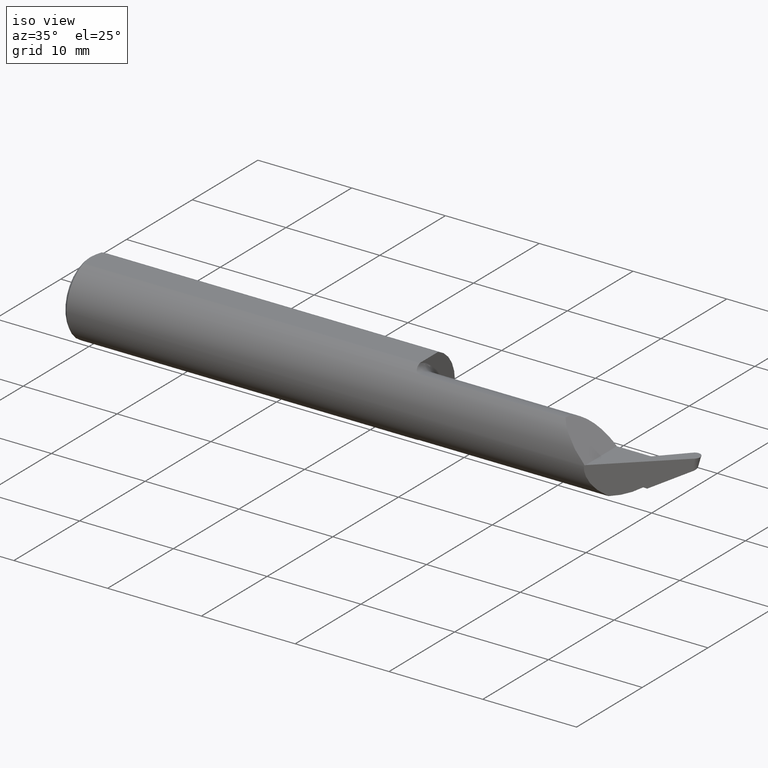
[diagram: clean part render]
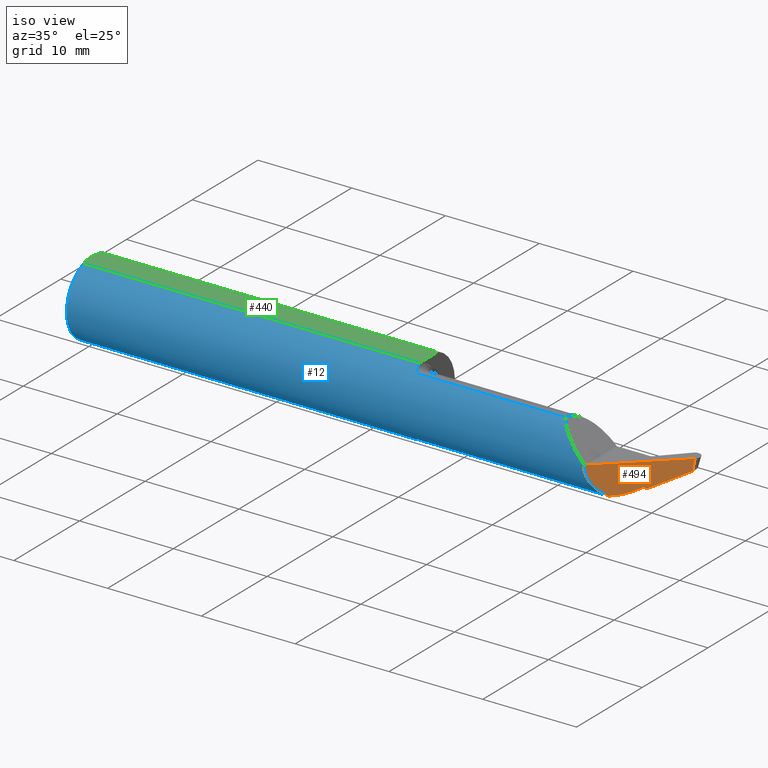
[diagram: same view with three faces highlighted in distinct colors, each labeled with its STEP entity id]
A machine part, iso view with three faces highlighted in distinct colors.
Their STEP definitions:

[orange] entity #494 — the highlighted planar face has unit normal (-0.6816, 0.7309, 0.0349).
#7 = CARTESIAN_POINT ( 'NONE',  ( 2.341910053109494072, -0.006189025616570364118, -0.1029650486948709004 ) ) ;
#11 = ORIENTED_EDGE ( 'NONE', *, *, #552, .F. ) ;
#13 = EDGE_CURVE ( 'NONE', #333, #600, #734, .T. ) ;
#16 = CARTESIAN_POINT ( 'NONE',  ( 2.335204060364074241, -0.01263723099847496520, -0.09888602002618680775 ) ) ;
#21 = CARTESIAN_POINT ( 'NONE',  ( 2.467023715125999050, 0.1063236993262351437, -0.01589037952955454566 ) ) ;
#41 = CARTESIAN_POINT ( 'NONE',  ( 2.247040128195683995, -0.09360841750841747411, -0.1249186702281519928 ) ) ;
#56 = ORIENTED_EDGE ( 'NONE', *, *, #309, .F. ) ;
#63 =( BOUNDED_CURVE ( )  B_SPLINE_CURVE ( 3, ( #169, #401, #631, #622 ),
 .UNSPECIFIED., .F., .T. ) 
 B_SPLINE_CURVE_WITH_KNOTS ( ( 4, 4 ),
 ( 1.487009272507281432, 2.181294901577356615 ),
 .UNSPECIFIED. ) 
 CURVE ( )  GEOMETRIC_REPRESENTATION_ITEM ( )  RATIONAL_B_SPLINE_CURVE ( ( 1.000000000000000000, 0.9602323999064841242, 0.9602323999064841242, 1.000000000000000000 ) ) 
 REPRESENTATION_ITEM ( '' )  );
#70 = ORIENTED_EDGE ( 'NONE', *, *, #367, .T. ) ;
#76 = CARTESIAN_POINT ( 'NONE',  ( 2.462650905954093972, 0.1037634605271126192, -0.04767113858760475831 ) ) ;
#78 = LINE ( 'NONE', #131, #100 ) ;
#80 = CARTESIAN_POINT ( 'NONE',  ( 2.469210119712022422, 0.1076038187258366308, 0.000000000000000000 ) ) ;
#100 = VECTOR ( 'NONE', #361, 39.37007874015748854 ) ;
#105 = ORIENTED_EDGE ( 'NONE', *, *, #178, .T. ) ;
#110 = FACE_OUTER_BOUND ( 'NONE', #347, .T. ) ;
#112 = CARTESIAN_POINT ( 'NONE',  ( 2.469210119712022422, 0.1076038187258366308, 0.000000000000000000 ) ) ;
#118 = VERTEX_POINT ( 'NONE', #501 ) ;
#127 = B_SPLINE_CURVE_WITH_KNOTS ( 'NONE', 3,
 ( #76, #538, #21, #80 ),
 .UNSPECIFIED., .F., .F.,
 ( 4, 4 ),
 ( 0.000000000000000000, 1.000000000000000000 ),
 .UNSPECIFIED. ) ;
#131 = CARTESIAN_POINT ( 'NONE',  ( 2.291994963155228771, -0.05139820251148209673, -0.1309744722033371334 ) ) ;
#135 = CARTESIAN_POINT ( 'NONE',  ( 2.345272296160326064, -0.002957592996309808733, -0.1049774889299558978 ) ) ;
#168 = LINE ( 'NONE', #293, #465 ) ;
#169 = CARTESIAN_POINT ( 'NONE',  ( 2.247040128195683995, -0.09360841750841747411, -0.1249186702281519928 ) ) ;
#178 = EDGE_CURVE ( 'NONE', #190, #600, #350, .T. ) ;
#190 = VERTEX_POINT ( 'NONE', #677 ) ;
#231 = PLANE ( 'NONE',  #614 ) ;
#238 = ORIENTED_EDGE ( 'NONE', *, *, #572, .T. ) ;
#241 = VERTEX_POINT ( 'NONE', #112 ) ;
#253 = EDGE_CURVE ( 'NONE', #333, #308, #63, .T. ) ;
#293 = CARTESIAN_POINT ( 'NONE',  ( 2.422925986548072341, 0.06765131554262537872, -0.06718900691150708759 ) ) ;
#302 = ORIENTED_EDGE ( 'NONE', *, *, #13, .F. ) ;
#304 = CARTESIAN_POINT ( 'NONE',  ( 2.338553550332264308, -0.009415917154835680078, -0.1009356065419781262 ) ) ;
#308 = VERTEX_POINT ( 'NONE', #637 ) ;
#309 = EDGE_CURVE ( 'NONE', #647, #745, #78, .T. ) ;
#333 = VERTEX_POINT ( 'NONE', #589 ) ;
#347 = EDGE_LOOP ( 'NONE', ( #11, #685, #238, #105, #302, #424, #70, #56 ) ) ;
#350 = LINE ( 'NONE', #460, #700 ) ;
#352 = CARTESIAN_POINT ( 'NONE',  ( 2.186422395796417728, -0.1561000000000001831, 1.397937840507884809E-16 ) ) ;
#361 = DIRECTION ( 'NONE',  ( -0.6959269503777310018, -0.6327479953080068498, -0.3395815869149114707 ) ) ;
#367 = EDGE_CURVE ( 'NONE', #308, #745, #594, .T. ) ;
#380 = CARTESIAN_POINT ( 'NONE',  ( 2.345272296160326064, -0.002957592996309808733, -0.1049774889299558978 ) ) ;
#401 = CARTESIAN_POINT ( 'NONE',  ( 2.278626883863794195, -0.06410244459253963689, -0.1259835650485489067 ) ) ;
#403 = DIRECTION ( 'NONE',  ( -0.7313537016191657969, -0.6819983600625033615, 0.000000000000000000 ) ) ;
#416 = VECTOR ( 'NONE', #621, 39.37007874015748854 ) ;
#424 = ORIENTED_EDGE ( 'NONE', *, *, #253, .T. ) ;
#460 = CARTESIAN_POINT ( 'NONE',  ( 2.186422395796417728, -0.1560999999999998777, 0.000000000000000000 ) ) ;
#465 = VECTOR ( 'NONE', #518, 39.37007874015748854 ) ;
#470 = CARTESIAN_POINT ( 'NONE',  ( 2.453517422339704712, 0.09546061965472858735, -0.05215865255086903074 ) ) ;
#491 = CARTESIAN_POINT ( 'NONE',  ( 2.183857730971068722, -0.1561000000000000443, -0.05008759057876768089 ) ) ;
#494 = ADVANCED_FACE ( 'NONE', ( #110 ), #231, .F. ) ;
#501 = CARTESIAN_POINT ( 'NONE',  ( 2.462650905954093972, 0.1037634605271126192, -0.04767113858760475831 ) ) ;
#508 = LINE ( 'NONE', #746, #416 ) ;
#518 = DIRECTION ( 'NONE',  ( -0.6954206866754731875, -0.6321757989175362802, -0.3416779592054305370 ) ) ;
#538 = CARTESIAN_POINT ( 'NONE',  ( 2.464837310540046733, 0.1050435799266739162, -0.03178075905857592059 ) ) ;
#552 = EDGE_CURVE ( 'NONE', #118, #647, #168, .T. ) ;
#572 = EDGE_CURVE ( 'NONE', #241, #190, #508, .T. ) ;
#589 = CARTESIAN_POINT ( 'NONE',  ( 2.247040128195683995, -0.09360841750841747411, -0.1249186702281519928 ) ) ;
#594 = B_SPLINE_CURVE_WITH_KNOTS ( 'NONE', 3,
 ( #16, #304, #7, #135 ),
 .UNSPECIFIED., .F., .F.,
 ( 4, 4 ),
 ( 3.032684866770484718E-07, 0.0003873263563797652281 ),
 .UNSPECIFIED. ) ;
#600 = VERTEX_POINT ( 'NONE', #352 ) ;
#611 = CARTESIAN_POINT ( 'NONE',  ( 2.556757356576102147, 0.1995508887891693228, -0.2158817856614890784 ) ) ;
#614 = AXIS2_PLACEMENT_3D ( 'NONE', #611, #732, #403 ) ;
#619 = DIRECTION ( 'NONE',  ( -0.7313537016191669071, -0.6819983600625022513, 0.000000000000000000 ) ) ;
#621 = DIRECTION ( 'NONE',  ( -0.7313537016191669071, -0.6819983600625022513, 0.000000000000000000 ) ) ;
#622 = CARTESIAN_POINT ( 'NONE',  ( 2.335204060364074241, -0.01263723099847496520, -0.09888602002618680775 ) ) ;
#631 = CARTESIAN_POINT ( 'NONE',  ( 2.309231951337382682, -0.03599425379837072753, -0.1169466380836112485 ) ) ;
#637 = CARTESIAN_POINT ( 'NONE',  ( 2.335204060364074241, -0.01263723099847496520, -0.09888602002618680775 ) ) ;
#647 = VERTEX_POINT ( 'NONE', #470 ) ;
#677 = CARTESIAN_POINT ( 'NONE',  ( 2.191000000000000281, -0.1518313150217918961, 0.000000000000000000 ) ) ;
#685 = ORIENTED_EDGE ( 'NONE', *, *, #728, .T. ) ;
#700 = VECTOR ( 'NONE', #619, 39.37007874015748854 ) ;
#726 = CARTESIAN_POINT ( 'NONE',  ( 2.186422395796417728, -0.1561000000000001831, 1.397937840507884809E-16 ) ) ;
#728 = EDGE_CURVE ( 'NONE', #118, #241, #127, .T. ) ;
#731 = CARTESIAN_POINT ( 'NONE',  ( 2.205594881674051599, -0.1336908980339253927, -0.09488266708345013956 ) ) ;
#732 = DIRECTION ( 'NONE',  ( -0.6815829050885326978, 0.7309081807046555745, 0.03489949670248766039 ) ) ;
#734 =( BOUNDED_CURVE ( )  B_SPLINE_CURVE ( 3, ( #41, #731, #491, #726 ),
 .UNSPECIFIED., .F., .T. ) 
 B_SPLINE_CURVE_WITH_KNOTS ( ( 4, 4 ),
 ( 5.403188986581573872, 6.330897197100740392 ),
 .UNSPECIFIED. ) 
 CURVE ( )  GEOMETRIC_REPRESENTATION_ITEM ( )  RATIONAL_B_SPLINE_CURVE ( ( 1.000000000000000000, 0.9295565493311495064, 0.9295565493311495064, 1.000000000000000000 ) ) 
 REPRESENTATION_ITEM ( '' )  );
#745 = VERTEX_POINT ( 'NONE', #380 ) ;
#746 = CARTESIAN_POINT ( 'NONE',  ( 2.186422395796417728, -0.1560999999999998777, 0.000000000000000000 ) ) ;

[blue] entity #12 — the highlighted cylindrical surface (partial cylindrical patch) has radius 3.9649 mm, axis along (-1, -0, -0).
#5 = VERTEX_POINT ( 'NONE', #379 ) ;
#12 = ADVANCED_FACE ( 'NONE', ( #266 ), #497, .T. ) ;
#13 = EDGE_CURVE ( 'NONE', #333, #600, #734, .T. ) ;
#33 = DIRECTION ( 'NONE',  ( 0.000000000000000000, 0.000000000000000000, 1.000000000000000000 ) ) ;
#41 = CARTESIAN_POINT ( 'NONE',  ( 2.247040128195683995, -0.09360841750841747411, -0.1249186702281519928 ) ) ;
#46 = DIRECTION ( 'NONE',  ( 1.000000000000000000, -0.000000000000000000, -0.000000000000000000 ) ) ;
#47 = DIRECTION ( 'NONE',  ( -1.000000000000000000, -0.000000000000000000, -0.000000000000000000 ) ) ;
#48 = VERTEX_POINT ( 'NONE', #207 ) ;
#51 = CARTESIAN_POINT ( 'NONE',  ( 1.433968222952011207, -0.08292257577194375728, 0.1323215906886383575 ) ) ;
#55 = CARTESIAN_POINT ( 'NONE',  ( 1.433963077135974817, -0.08291057444783019037, -0.1323284214741863307 ) ) ;
#68 = CARTESIAN_POINT ( 'NONE',  ( 2.066081329771848996, -0.09360841750841744635, 0.1249186702281519790 ) ) ;
#81 = LINE ( 'NONE', #603, #661 ) ;
#104 = CARTESIAN_POINT ( 'NONE',  ( 1.426999999999999824, -0.05502817059483734730, -0.1460791239054556601 ) ) ;
#109 = VERTEX_POINT ( 'NONE', #387 ) ;
#114 = CIRCLE ( 'NONE', #686, 0.1560999999999999888 ) ;
#117 = CARTESIAN_POINT ( 'NONE',  ( 1.436397142708820240, -0.08631844651567580073, 0.1301035823018546478 ) ) ;
#120 = EDGE_CURVE ( 'NONE', #632, #600, #655, .T. ) ;
#122 = CARTESIAN_POINT ( 'NONE',  ( 1.426999999999997826, -0.05933838711026702406, -0.1444554604868196757 ) ) ;
#133 =( BOUNDED_CURVE ( )  B_SPLINE_CURVE ( 3, ( #296, #695, #312, #68 ),
 .UNSPECIFIED., .F., .T. ) 
 B_SPLINE_CURVE_WITH_KNOTS ( ( 4, 4 ),
 ( 4.712388980384689674, 5.640097190903854418 ),
 .UNSPECIFIED. ) 
 CURVE ( )  GEOMETRIC_REPRESENTATION_ITEM ( )  RATIONAL_B_SPLINE_CURVE ( ( 1.000000000000000000, 0.9295565493311498395, 0.9295565493311498395, 1.000000000000000000 ) ) 
 REPRESENTATION_ITEM ( '' )  );
#136 = VERTEX_POINT ( 'NONE', #435 ) ;
#144 = DIRECTION ( 'NONE',  ( -1.000000000000000000, -7.764387408964029902E-17, -0.000000000000000000 ) ) ;
#146 = VERTEX_POINT ( 'NONE', #658 ) ;
#151 = LINE ( 'NONE', #393, #199 ) ;
#153 = DIRECTION ( 'NONE',  ( -1.000000000000000000, -0.000000000000000000, -0.000000000000000000 ) ) ;
#155 = EDGE_CURVE ( 'NONE', #136, #291, #313, .T. ) ;
#172 = CARTESIAN_POINT ( 'NONE',  ( 0.01499999999999970281, 0.000000000000000000, -0.1560999999999999888 ) ) ;
#174 = CARTESIAN_POINT ( 'NONE',  ( 1.426999999999999824, 0.000000000000000000, 0.000000000000000000 ) ) ;
#184 = VERTEX_POINT ( 'NONE', #222 ) ;
#196 = EDGE_CURVE ( 'NONE', #184, #571, #684, .T. ) ;
#199 = VECTOR ( 'NONE', #565, 39.37007874015748143 ) ;
#204 = DIRECTION ( 'NONE',  ( -1.000000000000000000, -0.000000000000000000, -0.000000000000000000 ) ) ;
#207 = CARTESIAN_POINT ( 'NONE',  ( 2.066081329771848996, -0.09360841750841744635, 0.1249186702281519790 ) ) ;
#209 = AXIS2_PLACEMENT_3D ( 'NONE', #559, #153, #33 ) ;
#216 = CARTESIAN_POINT ( 'NONE',  ( 1.426999999999999824, -0.05502817059483734730, 0.1460791239054556601 ) ) ;
#218 = CARTESIAN_POINT ( 'NONE',  ( 1.427000000000000046, -0.05936499800629328055, 0.1444454361322977665 ) ) ;
#222 = CARTESIAN_POINT ( 'NONE',  ( 1.426999999999999824, -0.05497272050753915923, 0.1460999999999999799 ) ) ;
#223 = B_SPLINE_CURVE_WITH_KNOTS ( 'NONE', 3,
 ( #345, #294, #733, #570, #55, #290, #404, #628, #122, #104 ),
 .UNSPECIFIED., .F., .F.,
 ( 4, 2, 2, 2, 4 ),
 ( 1.958690481381664333E-07, 0.0003511029445248164873, 0.0007020100200014948002, 0.001052917095478172896, 0.001403824170954851317 ),
 .UNSPECIFIED. ) ;
#224 = ORIENTED_EDGE ( 'NONE', *, *, #227, .T. ) ;
#225 = EDGE_CURVE ( 'NONE', #5, #409, #429, .T. ) ;
#227 = EDGE_CURVE ( 'NONE', #506, #146, #596, .T. ) ;
#232 = CARTESIAN_POINT ( 'NONE',  ( 1.442961110143899273, -0.09166971356555045358, 0.1263901893006928456 ) ) ;
#242 = CARTESIAN_POINT ( 'NONE',  ( 2.191000000000000281, -0.1560999999999999888, 0.000000000000000000 ) ) ;
#246 = CIRCLE ( 'NONE', #487, 0.1560999999999999888 ) ;
#254 = ORIENTED_EDGE ( 'NONE', *, *, #625, .T. ) ;
#266 = FACE_OUTER_BOUND ( 'NONE', #564, .T. ) ;
#267 = ORIENTED_EDGE ( 'NONE', *, *, #623, .T. ) ;
#278 = DIRECTION ( 'NONE',  ( 0.000000000000000000, 0.000000000000000000, -1.000000000000000000 ) ) ;
#279 = DIRECTION ( 'NONE',  ( 0.000000000000000000, 1.000000000000000000, 0.000000000000000000 ) ) ;
#282 = CARTESIAN_POINT ( 'NONE',  ( 1.447302566751078601, -0.09360841750841744635, 0.1249186702281520484 ) ) ;
#283 = VECTOR ( 'NONE', #204, 39.37007874015748143 ) ;
#286 = EDGE_CURVE ( 'NONE', #109, #5, #223, .T. ) ;
#290 = CARTESIAN_POINT ( 'NONE',  ( 1.430298581922915480, -0.07564908586346476282, -0.1366096273808738992 ) ) ;
#291 = VERTEX_POINT ( 'NONE', #673 ) ;
#294 = CARTESIAN_POINT ( 'NONE',  ( 1.447298065053172600, -0.09360841750841741860, -0.1249186702281520345 ) ) ;
#296 = CARTESIAN_POINT ( 'NONE',  ( 2.191000000000000281, -0.1560999999999999888, 0.000000000000000000 ) ) ;
#299 = VECTOR ( 'NONE', #47, 39.37007874015748143 ) ;
#312 = CARTESIAN_POINT ( 'NONE',  ( 2.096117332916550779, -0.1336908980339253927, 0.09488266708345011180 ) ) ;
#313 = B_SPLINE_CURVE_WITH_KNOTS ( 'NONE', 3,
 ( #216, #218, #398, #747, #505, #51, #117, #232, #282, #515 ),
 .UNSPECIFIED., .F., .F.,
 ( 4, 2, 2, 2, 4 ),
 ( 2.042507625486400998E-06, 0.0003500235523914669114, 0.0006980045971574474128, 0.001045985641923427968, 0.001393966686689408416 ),
 .UNSPECIFIED. ) ;
#324 = AXIS2_PLACEMENT_3D ( 'NONE', #456, #576, #464 ) ;
#326 = CARTESIAN_POINT ( 'NONE',  ( 2.500000000000000000, -0.1560999999999999888, 0.000000000000000000 ) ) ;
#333 = VERTEX_POINT ( 'NONE', #589 ) ;
#336 = AXIS2_PLACEMENT_3D ( 'NONE', #174, #741, #279 ) ;
#344 = CARTESIAN_POINT ( 'NONE',  ( 1.426999999999999824, 0.000000000000000000, 0.000000000000000000 ) ) ;
#345 = CARTESIAN_POINT ( 'NONE',  ( 1.451999999999999735, -0.09360841750841747411, -0.1249186702281519512 ) ) ;
#349 = CARTESIAN_POINT ( 'NONE',  ( 0.01499999999999970281, 0.000000000000000000, 0.000000000000000000 ) ) ;
#352 = CARTESIAN_POINT ( 'NONE',  ( 2.186422395796417728, -0.1561000000000001831, 1.397937840507884809E-16 ) ) ;
#360 = DIRECTION ( 'NONE',  ( 1.000000000000000000, 0.000000000000000000, 0.000000000000000000 ) ) ;
#362 = ORIENTED_EDGE ( 'NONE', *, *, #155, .F. ) ;
#371 = ORIENTED_EDGE ( 'NONE', *, *, #225, .F. ) ;
#379 = CARTESIAN_POINT ( 'NONE',  ( 1.426999999999999824, -0.05502817059483734730, -0.1460791239054556601 ) ) ;
#381 = CARTESIAN_POINT ( 'NONE',  ( 1.426999999999999824, 0.05497272050753900657, 0.1460999999999999799 ) ) ;
#387 = CARTESIAN_POINT ( 'NONE',  ( 1.451999999999999735, -0.09360841750841747411, -0.1249186702281519512 ) ) ;
#389 = EDGE_CURVE ( 'NONE', #333, #109, #81, .T. ) ;
#393 = CARTESIAN_POINT ( 'NONE',  ( 1.893602030182037099, -0.09360841750841751574, 0.1249186702281519928 ) ) ;
#398 = CARTESIAN_POINT ( 'NONE',  ( 1.427388004276692879, -0.06355822688702697509, 0.1426455942582920688 ) ) ;
#404 = CARTESIAN_POINT ( 'NONE',  ( 1.429026367118634511, -0.07167964287766666331, -0.1387431844349195365 ) ) ;
#407 = DIRECTION ( 'NONE',  ( 0.000000000000000000, 1.000000000000000000, 0.000000000000000000 ) ) ;
#408 = CARTESIAN_POINT ( 'NONE',  ( 2.500000000000000000, -0.05497272050753900657, 0.1460999999999999799 ) ) ;
#409 = VERTEX_POINT ( 'NONE', #381 ) ;
#410 = CARTESIAN_POINT ( 'NONE',  ( 2.500000000000000000, 0.05497272050753900657, 0.1460999999999999799 ) ) ;
#421 = EDGE_CURVE ( 'NONE', #291, #48, #151, .T. ) ;
#429 = CIRCLE ( 'NONE', #336, 0.1560999999999999888 ) ;
#435 = CARTESIAN_POINT ( 'NONE',  ( 1.426999999999999824, -0.05502817059483734730, 0.1460791239054556601 ) ) ;
#456 = CARTESIAN_POINT ( 'NONE',  ( 0.01499999999999970281, 0.000000000000000000, 0.000000000000000000 ) ) ;
#457 = ORIENTED_EDGE ( 'NONE', *, *, #120, .F. ) ;
#464 = DIRECTION ( 'NONE',  ( 0.000000000000000000, 0.000000000000000000, -1.000000000000000000 ) ) ;
#487 = AXIS2_PLACEMENT_3D ( 'NONE', #344, #743, #407 ) ;
#491 = CARTESIAN_POINT ( 'NONE',  ( 2.183857730971068722, -0.1561000000000000443, -0.05008759057876768089 ) ) ;
#497 = CYLINDRICAL_SURFACE ( 'NONE', #209, 0.1560999999999999888 ) ;
#505 = CARTESIAN_POINT ( 'NONE',  ( 1.430286672421924754, -0.07562367844220799218, 0.1366243616413076178 ) ) ;
#506 = VERTEX_POINT ( 'NONE', #172 ) ;
#511 = ORIENTED_EDGE ( 'NONE', *, *, #286, .F. ) ;
#514 = CARTESIAN_POINT ( 'NONE',  ( 0.01499999999999970281, -0.05497272050753900657, 0.1460999999999999799 ) ) ;
#515 = CARTESIAN_POINT ( 'NONE',  ( 1.451999999999999735, -0.09360841750841751574, 0.1249186702281519512 ) ) ;
#519 = EDGE_CURVE ( 'NONE', #571, #506, #114, .T. ) ;
#523 = LINE ( 'NONE', #410, #674 ) ;
#540 = ORIENTED_EDGE ( 'NONE', *, *, #421, .F. ) ;
#559 = CARTESIAN_POINT ( 'NONE',  ( 2.500000000000000000, 0.000000000000000000, 0.000000000000000000 ) ) ;
#564 = EDGE_LOOP ( 'NONE', ( #643, #651, #457, #267, #540, #362, #620, #702, #706, #224, #254, #371, #511 ) ) ;
#565 = DIRECTION ( 'NONE',  ( 1.000000000000000000, 7.764387408964029902E-17, 0.000000000000000000 ) ) ;
#570 = CARTESIAN_POINT ( 'NONE',  ( 1.436390565699349864, -0.08631243322371091875, -0.1301077001157306678 ) ) ;
#571 = VERTEX_POINT ( 'NONE', #514 ) ;
#573 = EDGE_CURVE ( 'NONE', #184, #136, #246, .T. ) ;
#576 = DIRECTION ( 'NONE',  ( 1.000000000000000000, -0.000000000000000000, -0.000000000000000000 ) ) ;
#589 = CARTESIAN_POINT ( 'NONE',  ( 2.247040128195683995, -0.09360841750841747411, -0.1249186702281519928 ) ) ;
#596 = CIRCLE ( 'NONE', #324, 0.1560999999999999888 ) ;
#600 = VERTEX_POINT ( 'NONE', #352 ) ;
#603 = CARTESIAN_POINT ( 'NONE',  ( 1.893602030182037099, -0.09360841750841751574, -0.1249186702281519928 ) ) ;
#620 = ORIENTED_EDGE ( 'NONE', *, *, #573, .F. ) ;
#623 = EDGE_CURVE ( 'NONE', #632, #48, #133, .T. ) ;
#625 = EDGE_CURVE ( 'NONE', #146, #409, #523, .T. ) ;
#628 = CARTESIAN_POINT ( 'NONE',  ( 1.427382848617946509, -0.06353102748571698433, -0.1426585117573465900 ) ) ;
#632 = VERTEX_POINT ( 'NONE', #242 ) ;
#643 = ORIENTED_EDGE ( 'NONE', *, *, #389, .F. ) ;
#651 = ORIENTED_EDGE ( 'NONE', *, *, #13, .T. ) ;
#655 = LINE ( 'NONE', #326, #283 ) ;
#658 = CARTESIAN_POINT ( 'NONE',  ( 0.01499999999999970281, 0.05497272050753900657, 0.1460999999999999799 ) ) ;
#661 = VECTOR ( 'NONE', #144, 39.37007874015748143 ) ;
#673 = CARTESIAN_POINT ( 'NONE',  ( 1.451999999999999735, -0.09360841750841751574, 0.1249186702281519512 ) ) ;
#674 = VECTOR ( 'NONE', #360, 39.37007874015748143 ) ;
#684 = LINE ( 'NONE', #408, #299 ) ;
#686 = AXIS2_PLACEMENT_3D ( 'NONE', #349, #46, #278 ) ;
#695 = CARTESIAN_POINT ( 'NONE',  ( 2.140912409421232621, -0.1560999999999999888, 0.05008759057876775028 ) ) ;
#702 = ORIENTED_EDGE ( 'NONE', *, *, #196, .T. ) ;
#706 = ORIENTED_EDGE ( 'NONE', *, *, #519, .T. ) ;
#726 = CARTESIAN_POINT ( 'NONE',  ( 2.186422395796417728, -0.1561000000000001831, 1.397937840507884809E-16 ) ) ;
#731 = CARTESIAN_POINT ( 'NONE',  ( 2.205594881674051599, -0.1336908980339253927, -0.09488266708345013956 ) ) ;
#733 = CARTESIAN_POINT ( 'NONE',  ( 1.442963332554101141, -0.09167217634395848080, -0.1263885352504912074 ) ) ;
#734 =( BOUNDED_CURVE ( )  B_SPLINE_CURVE ( 3, ( #41, #731, #491, #726 ),
 .UNSPECIFIED., .F., .T. ) 
 B_SPLINE_CURVE_WITH_KNOTS ( ( 4, 4 ),
 ( 5.403188986581573872, 6.330897197100740392 ),
 .UNSPECIFIED. ) 
 CURVE ( )  GEOMETRIC_REPRESENTATION_ITEM ( )  RATIONAL_B_SPLINE_CURVE ( ( 1.000000000000000000, 0.9295565493311495064, 0.9295565493311495064, 1.000000000000000000 ) ) 
 REPRESENTATION_ITEM ( '' )  );
#741 = DIRECTION ( 'NONE',  ( 1.000000000000000000, 7.764387408964029902E-17, 0.000000000000000000 ) ) ;
#743 = DIRECTION ( 'NONE',  ( 1.000000000000000000, 7.764387408964029902E-17, 0.000000000000000000 ) ) ;
#747 = CARTESIAN_POINT ( 'NONE',  ( 1.429022937423426232, -0.07166099912599854793, 0.1387519908707176286 ) ) ;

[green] entity #440 — the highlighted planar face has unit normal (-0, 0, -1).
#26 = ORIENTED_EDGE ( 'NONE', *, *, #444, .T. ) ;
#47 = DIRECTION ( 'NONE',  ( -1.000000000000000000, -0.000000000000000000, -0.000000000000000000 ) ) ;
#73 = CARTESIAN_POINT ( 'NONE',  ( 0.01499999999999970281, 0.05497272050753900657, 0.1460999999999999799 ) ) ;
#75 = ORIENTED_EDGE ( 'NONE', *, *, #196, .F. ) ;
#77 = AXIS2_PLACEMENT_3D ( 'NONE', #562, #103, #568 ) ;
#103 = DIRECTION ( 'NONE',  ( -0.000000000000000000, 0.000000000000000000, -1.000000000000000000 ) ) ;
#139 = EDGE_LOOP ( 'NONE', ( #305, #329, #748, #26, #75 ) ) ;
#146 = VERTEX_POINT ( 'NONE', #658 ) ;
#163 = VECTOR ( 'NONE', #427, 39.37007874015748143 ) ;
#184 = VERTEX_POINT ( 'NONE', #222 ) ;
#196 = EDGE_CURVE ( 'NONE', #184, #571, #684, .T. ) ;
#215 = CARTESIAN_POINT ( 'NONE',  ( 0.004999999999997738025, -0.009421212120332620593, 0.1460999999999999521 ) ) ;
#217 = FACE_OUTER_BOUND ( 'NONE', #139, .T. ) ;
#222 = CARTESIAN_POINT ( 'NONE',  ( 1.426999999999999824, -0.05497272050753915923, 0.1460999999999999799 ) ) ;
#226 = CARTESIAN_POINT ( 'NONE',  ( 0.009389923699173040317, -0.03718686308286630465, 0.1460999999999999799 ) ) ;
#248 = CARTESIAN_POINT ( 'NONE',  ( 1.426999999999999824, 0.1000000000000001166, 0.1460999999999999799 ) ) ;
#288 = CARTESIAN_POINT ( 'NONE',  ( 0.004999999999999809285, 1.568771489523154700E-17, 0.1460999999999999799 ) ) ;
#299 = VECTOR ( 'NONE', #47, 39.37007874015748143 ) ;
#305 = ORIENTED_EDGE ( 'NONE', *, *, #368, .F. ) ;
#329 = ORIENTED_EDGE ( 'NONE', *, *, #625, .F. ) ;
#360 = DIRECTION ( 'NONE',  ( 1.000000000000000000, 0.000000000000000000, 0.000000000000000000 ) ) ;
#368 = EDGE_CURVE ( 'NONE', #409, #184, #411, .T. ) ;
#381 = CARTESIAN_POINT ( 'NONE',  ( 1.426999999999999824, 0.05497272050753900657, 0.1460999999999999799 ) ) ;
#397 = CARTESIAN_POINT ( 'NONE',  ( 0.01499999999999970281, -0.05497272050753900657, 0.1460999999999999799 ) ) ;
#402 = VERTEX_POINT ( 'NONE', #666 ) ;
#408 = CARTESIAN_POINT ( 'NONE',  ( 2.500000000000000000, -0.05497272050753900657, 0.1460999999999999799 ) ) ;
#409 = VERTEX_POINT ( 'NONE', #381 ) ;
#410 = CARTESIAN_POINT ( 'NONE',  ( 2.500000000000000000, 0.05497272050753900657, 0.1460999999999999799 ) ) ;
#411 = LINE ( 'NONE', #248, #163 ) ;
#427 = DIRECTION ( 'NONE',  ( 7.764387408964029902E-17, -1.000000000000000000, 0.000000000000000000 ) ) ;
#440 = ADVANCED_FACE ( 'NONE', ( #217 ), #450, .F. ) ;
#444 = EDGE_CURVE ( 'NONE', #402, #571, #542, .T. ) ;
#450 = PLANE ( 'NONE',  #77 ) ;
#477 = CARTESIAN_POINT ( 'NONE',  ( 0.004999999999997805679, 0.01885727988527094445, 0.1460999999999999799 ) ) ;
#514 = CARTESIAN_POINT ( 'NONE',  ( 0.01499999999999970281, -0.05497272050753900657, 0.1460999999999999799 ) ) ;
#523 = LINE ( 'NONE', #410, #674 ) ;
#534 = CARTESIAN_POINT ( 'NONE',  ( 0.008721867529794318993, 0.03714539689046103543, 0.1460999999999999799 ) ) ;
#542 = B_SPLINE_CURVE_WITH_KNOTS ( 'NONE', 3,
 ( #288, #215, #740, #226, #679, #397 ),
 .UNSPECIFIED., .F., .F.,
 ( 4, 2, 4 ),
 ( 0.004461768721905728409, 0.005169424789029132550, 0.005877080856152537558 ),
 .UNSPECIFIED. ) ;
#562 = CARTESIAN_POINT ( 'NONE',  ( 0.000000000000000000, 0.1000000000000000056, 0.1460999999999999799 ) ) ;
#568 = DIRECTION ( 'NONE',  ( -1.000000000000000000, 0.000000000000000000, 0.000000000000000000 ) ) ;
#571 = VERTEX_POINT ( 'NONE', #514 ) ;
#625 = EDGE_CURVE ( 'NONE', #146, #409, #523, .T. ) ;
#642 = B_SPLINE_CURVE_WITH_KNOTS ( 'NONE', 3,
 ( #73, #534, #477, #703 ),
 .UNSPECIFIED., .F., .F.,
 ( 4, 4 ),
 ( 0.003045340734740924465, 0.004461768721905728409 ),
 .UNSPECIFIED. ) ;
#658 = CARTESIAN_POINT ( 'NONE',  ( 0.01499999999999970281, 0.05497272050753900657, 0.1460999999999999799 ) ) ;
#666 = CARTESIAN_POINT ( 'NONE',  ( 0.004999999999999809285, 1.568771489523154700E-17, 0.1460999999999999799 ) ) ;
#674 = VECTOR ( 'NONE', #360, 39.37007874015748143 ) ;
#679 = CARTESIAN_POINT ( 'NONE',  ( 0.01189405015400051870, -0.04615309567390923906, 0.1460999999999999799 ) ) ;
#684 = LINE ( 'NONE', #408, #299 ) ;
#703 = CARTESIAN_POINT ( 'NONE',  ( 0.004999999999999809285, 1.568771489523154700E-17, 0.1460999999999999799 ) ) ;
#704 = EDGE_CURVE ( 'NONE', #146, #402, #642, .T. ) ;
#740 = CARTESIAN_POINT ( 'NONE',  ( 0.005939505582910883930, -0.01887490007994174768, 0.1461000000000000076 ) ) ;
#748 = ORIENTED_EDGE ( 'NONE', *, *, #704, .T. ) ;